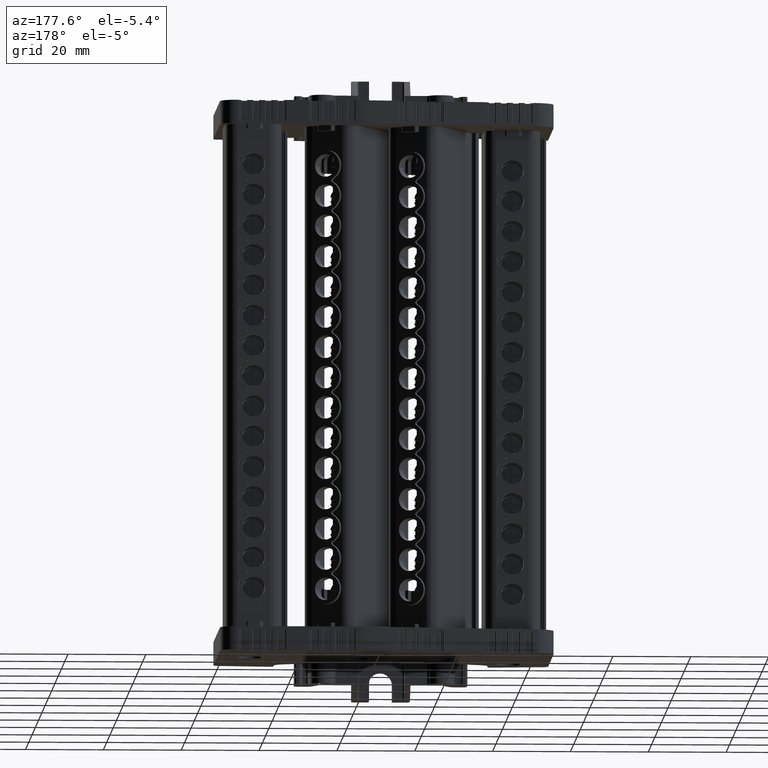
[diagram: clean part render]
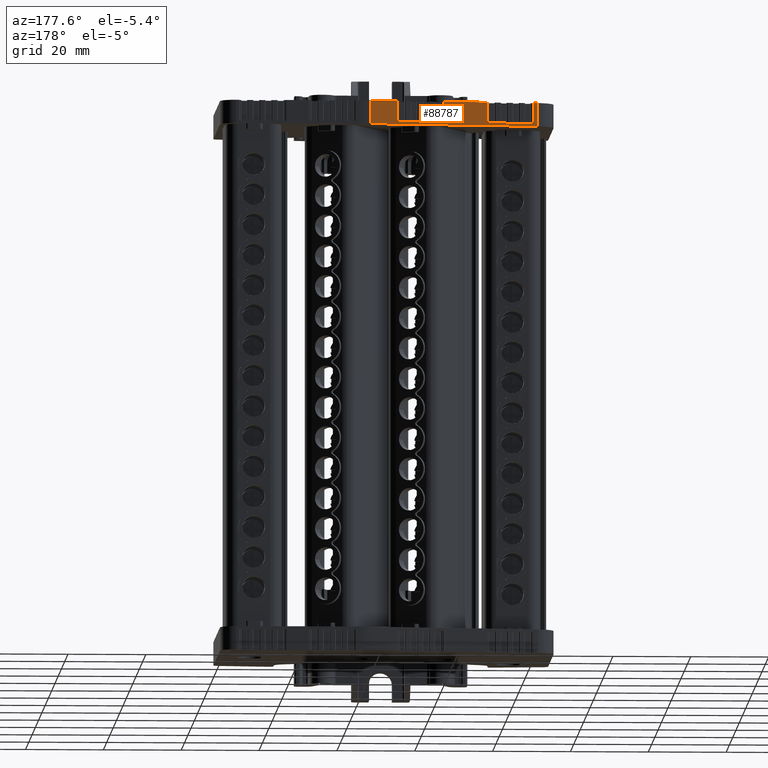
[diagram: same view with one face highlighted and labeled with its STEP entity id]
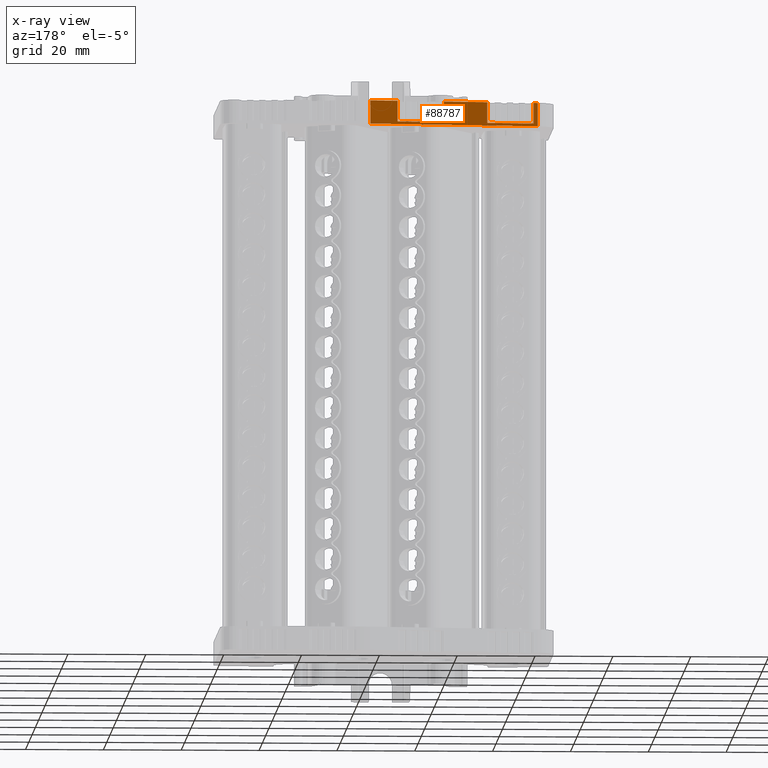
[diagram: x-ray of the same camera — body ghosted, the highlighted face saturated]
A machine part, auxiliary view. The second image highlights one B-rep face of the part: STEP entity #88787.
The next image is the same camera in x-ray: the body ghosted, the highlighted face saturated — about 0% of this face is hidden behind the body in this view.
In plain terms, the highlighted planar face has unit normal (0.1305, -0.9914, 0).
Its self-contained STEP definition (entity closure, byte-faithful):
#14994 = VECTOR ( 'NONE', #15927, 999.9999999999998900 ) ;
#15218 = VECTOR ( 'NONE', #16372, 999.9999999999998900 ) ;
#15910 = LINE ( 'NONE', #15916, #14994 ) ;
#15916 = CARTESIAN_POINT ( 'NONE',  ( 380.6894935943214500, -72.02090713841701600, 96.99460800001188000 ) ) ;
#15927 = DIRECTION ( 'NONE',  ( -0.9914448613738106000, -0.1305261922200509900, -0.0000000000000000000 ) ) ;
#16314 = LINE ( 'NONE', #16318, #15218 ) ;
#16318 = CARTESIAN_POINT ( 'NONE',  ( 380.6894935943214500, -72.02090713841701600, 96.99460800001188000 ) ) ;
#16372 = DIRECTION ( 'NONE',  ( -0.9914448613738106000, -0.1305261922200509900, -0.0000000000000000000 ) ) ;
#21458 = ORIENTED_EDGE ( 'NONE', *, *, #36003, .F. ) ;
#21466 = ORIENTED_EDGE ( 'NONE', *, *, #62073, .F. ) ;
#21479 = ORIENTED_EDGE ( 'NONE', *, *, #62181, .F. ) ;
#21489 = ORIENTED_EDGE ( 'NONE', *, *, #131515, .F. ) ;
#21491 = ORIENTED_EDGE ( 'NONE', *, *, #61477, .F. ) ;
#21493 = ORIENTED_EDGE ( 'NONE', *, *, #131769, .F. ) ;
#21498 = ORIENTED_EDGE ( 'NONE', *, *, #36262, .F. ) ;
#21505 = ORIENTED_EDGE ( 'NONE', *, *, #62227, .F. ) ;
#22242 = CARTESIAN_POINT ( 'NONE',  ( 354.5361155942134100, -75.46406467247850000, 96.29460800001189100 ) ) ;
#22286 = DIRECTION ( 'NONE',  ( 0.9914448613738106000, 0.1305261922200504100, 0.0000000000000000000 ) ) ;
#22318 = LINE ( 'NONE', #22242, #25017 ) ;
#22813 = VERTEX_POINT ( 'NONE', #74473 ) ;
#22947 = VERTEX_POINT ( 'NONE', #74545 ) ;
#23019 = VERTEX_POINT ( 'NONE', #74581 ) ;
#23086 = VERTEX_POINT ( 'NONE', #74697 ) ;
#23120 = VERTEX_POINT ( 'NONE', #74647 ) ;
#23187 = VERTEX_POINT ( 'NONE', #74805 ) ;
#25017 = VECTOR ( 'NONE', #22286, 1000.000000000000100 ) ;
#28762 = VECTOR ( 'NONE', #30631, 999.9999999999998900 ) ;
#28827 = VECTOR ( 'NONE', #31810, 1000.000000000000100 ) ;
#29769 = VECTOR ( 'NONE', #30164, 1000.000000000000100 ) ;
#30146 = CARTESIAN_POINT ( 'NONE',  ( 397.7271501336551300, -69.77785710197756000, 102.2946080000120300 ) ) ;
#30159 = LINE ( 'NONE', #30146, #29769 ) ;
#30164 = DIRECTION ( 'NONE',  ( -0.9914448613738116000, -0.1305261922200424400, 0.0000000000000000000 ) ) ;
#30631 = DIRECTION ( 'NONE',  ( -0.9914448613738101600, -0.1305261922200546000, 0.0000000000000000000 ) ) ;
#30647 = CARTESIAN_POINT ( 'NONE',  ( 378.7388101321814700, -72.27771948821018100, 102.2946080000120300 ) ) ;
#30668 = LINE ( 'NONE', #30647, #28762 ) ;
#31764 = LINE ( 'NONE', #31842, #28827 ) ;
#31810 = DIRECTION ( 'NONE',  ( -0.9914448613738120500, -0.1305261922200386100, 0.0000000000000000000 ) ) ;
#31842 = CARTESIAN_POINT ( 'NONE',  ( 355.5275604555870400, -75.33353848025848300, 102.2946080000120300 ) ) ;
#33581 = EDGE_CURVE ( 'NONE', #62524, #62629, #22318, .T. ) ;
#36003 = EDGE_CURVE ( 'NONE', #96413, #96414, #15910, .T. ) ;
#36262 = EDGE_CURVE ( 'NONE', #96428, #96534, #16314, .T. ) ;
#50423 = AXIS2_PLACEMENT_3D ( 'NONE', #52536, #52525, #52534 ) ;
#52525 = DIRECTION ( 'NONE',  ( 0.1305261922200509900, -0.9914448613738106000, 0.0000000000000000000 ) ) ;
#52528 = PLANE ( 'NONE',  #50423 ) ;
#52533 = FACE_OUTER_BOUND ( 'NONE', #78135, .T. ) ;
#52534 = DIRECTION ( 'NONE',  ( 0.9914448613738106000, 0.1305261922200509900, 0.0000000000000000000 ) ) ;
#52536 = CARTESIAN_POINT ( 'NONE',  ( 380.6894935943214500, -72.02090713841701600, 96.29460800001189100 ) ) ;
#56090 = ORIENTED_EDGE ( 'NONE', *, *, #131893, .F. ) ;
#56091 = ORIENTED_EDGE ( 'NONE', *, *, #62956, .F. ) ;
#56095 = ORIENTED_EDGE ( 'NONE', *, *, #33581, .F. ) ;
#56147 = ORIENTED_EDGE ( 'NONE', *, *, #62992, .F. ) ;
#61255 = CARTESIAN_POINT ( 'NONE',  ( 390.6687928640770300, -70.70710746538164000, 96.99460800001188000 ) ) ;
#61259 = CARTESIAN_POINT ( 'NONE',  ( 378.7388101321813600, -72.27771948821019500, 96.99460800001188000 ) ) ;
#61436 = CARTESIAN_POINT ( 'NONE',  ( 367.4575431874830500, -73.76292645742985600, 96.99460800001188000 ) ) ;
#61477 = EDGE_CURVE ( 'NONE', #96534, #23187, #110168, .T. ) ;
#61783 = CARTESIAN_POINT ( 'NONE',  ( 355.5275604555870400, -75.33353848025846800, 96.99460800001188000 ) ) ;
#62073 = EDGE_CURVE ( 'NONE', #22947, #96413, #111595, .T. ) ;
#62181 = EDGE_CURVE ( 'NONE', #23086, #96428, #111637, .T. ) ;
#62227 = EDGE_CURVE ( 'NONE', #96414, #23019, #111668, .T. ) ;
#62524 = VERTEX_POINT ( 'NONE', #112016 ) ;
#62629 = VERTEX_POINT ( 'NONE', #112034 ) ;
#62956 = EDGE_CURVE ( 'NONE', #62629, #22813, #115886, .T. ) ;
#62992 = EDGE_CURVE ( 'NONE', #23120, #62524, #115933, .T. ) ;
#74473 = CARTESIAN_POINT ( 'NONE',  ( 397.7271501336551300, -69.77785710197756000, 102.2946080000120300 ) ) ;
#74545 = CARTESIAN_POINT ( 'NONE',  ( 390.6687928640769800, -70.70710746538162500, 102.2946080000120300 ) ) ;
#74581 = CARTESIAN_POINT ( 'NONE',  ( 378.7388101321814700, -72.27771948821018100, 102.2946080000120300 ) ) ;
#74647 = CARTESIAN_POINT ( 'NONE',  ( 354.5361155942134100, -75.46406467247848600, 102.2946080000120300 ) ) ;
#74697 = CARTESIAN_POINT ( 'NONE',  ( 367.4575431874830500, -73.76292645742988400, 102.2946080000120300 ) ) ;
#74805 = CARTESIAN_POINT ( 'NONE',  ( 355.5275604555870400, -75.33353848025848300, 102.2946080000120300 ) ) ;
#78135 = EDGE_LOOP ( 'NONE', ( #56095, #56147, #56090, #21491, #21498, #21479, #21493, #21505, #21458, #21466, #21489, #56091 ) ) ;
#88787 = ADVANCED_FACE ( 'NONE', ( #52533 ), #52528, .F. ) ;
#96413 = VERTEX_POINT ( 'NONE', #61255 ) ;
#96414 = VERTEX_POINT ( 'NONE', #61259 ) ;
#96428 = VERTEX_POINT ( 'NONE', #61436 ) ;
#96534 = VERTEX_POINT ( 'NONE', #61783 ) ;
#107627 = VECTOR ( 'NONE', #110144, 1000.000000000000000 ) ;
#107792 = VECTOR ( 'NONE', #111589, 1000.000000000000000 ) ;
#107850 = VECTOR ( 'NONE', #111686, 1000.000000000000000 ) ;
#107966 = VECTOR ( 'NONE', #111671, 1000.000000000000000 ) ;
#108200 = VECTOR ( 'NONE', #115887, 1000.000000000000000 ) ;
#108290 = VECTOR ( 'NONE', #115937, 1000.000000000000000 ) ;
#110118 = CARTESIAN_POINT ( 'NONE',  ( 355.5275604555870400, -75.33353848025846800, 96.29460800001189100 ) ) ;
#110144 = DIRECTION ( 'NONE',  ( -0.0000000000000000000, 0.0000000000000000000, 1.000000000000000000 ) ) ;
#110168 = LINE ( 'NONE', #110118, #107627 ) ;
#111581 = CARTESIAN_POINT ( 'NONE',  ( 390.6687928640769800, -70.70710746538164000, 96.29460800001189100 ) ) ;
#111589 = DIRECTION ( 'NONE',  ( 0.0000000000000000000, -0.0000000000000000000, -1.000000000000000000 ) ) ;
#111595 = LINE ( 'NONE', #111581, #107792 ) ;
#111637 = LINE ( 'NONE', #111663, #107966 ) ;
#111663 = CARTESIAN_POINT ( 'NONE',  ( 367.4575431874830500, -73.76292645742985600, 96.29460800001189100 ) ) ;
#111668 = LINE ( 'NONE', #111682, #107850 ) ;
#111671 = DIRECTION ( 'NONE',  ( 0.0000000000000000000, -0.0000000000000000000, -1.000000000000000000 ) ) ;
#111682 = CARTESIAN_POINT ( 'NONE',  ( 378.7388101321814100, -72.27771948821018100, 96.29460800001189100 ) ) ;
#111686 = DIRECTION ( 'NONE',  ( -0.0000000000000000000, 0.0000000000000000000, 1.000000000000000000 ) ) ;
#112016 = CARTESIAN_POINT ( 'NONE',  ( 354.5361155942134100, -75.46406467247851400, 96.29460800001189100 ) ) ;
#112034 = CARTESIAN_POINT ( 'NONE',  ( 397.7271501336550200, -69.77785710197757400, 96.29460800001189100 ) ) ;
#115864 = CARTESIAN_POINT ( 'NONE',  ( 397.7271501336550200, -69.77785710197756000, 96.29460800001189100 ) ) ;
#115886 = LINE ( 'NONE', #115864, #108200 ) ;
#115887 = DIRECTION ( 'NONE',  ( 0.0000000000000000000, 0.0000000000000000000, 1.000000000000000000 ) ) ;
#115931 = CARTESIAN_POINT ( 'NONE',  ( 354.5361155942134100, -75.46406467247848600, 96.29460800001189100 ) ) ;
#115933 = LINE ( 'NONE', #115931, #108290 ) ;
#115937 = DIRECTION ( 'NONE',  ( 0.0000000000000000000, -0.0000000000000000000, -1.000000000000000000 ) ) ;
#131515 = EDGE_CURVE ( 'NONE', #22813, #22947, #30159, .T. ) ;
#131769 = EDGE_CURVE ( 'NONE', #23019, #23086, #30668, .T. ) ;
#131893 = EDGE_CURVE ( 'NONE', #23187, #23120, #31764, .T. ) ;